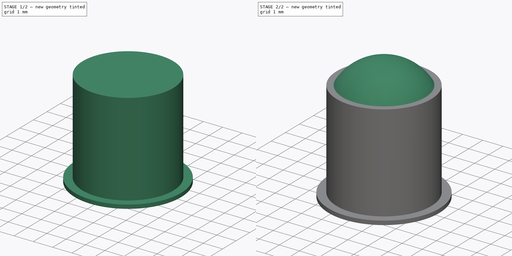
[diagram: build sequence overview — one tinted view per stage of 2, left to right]
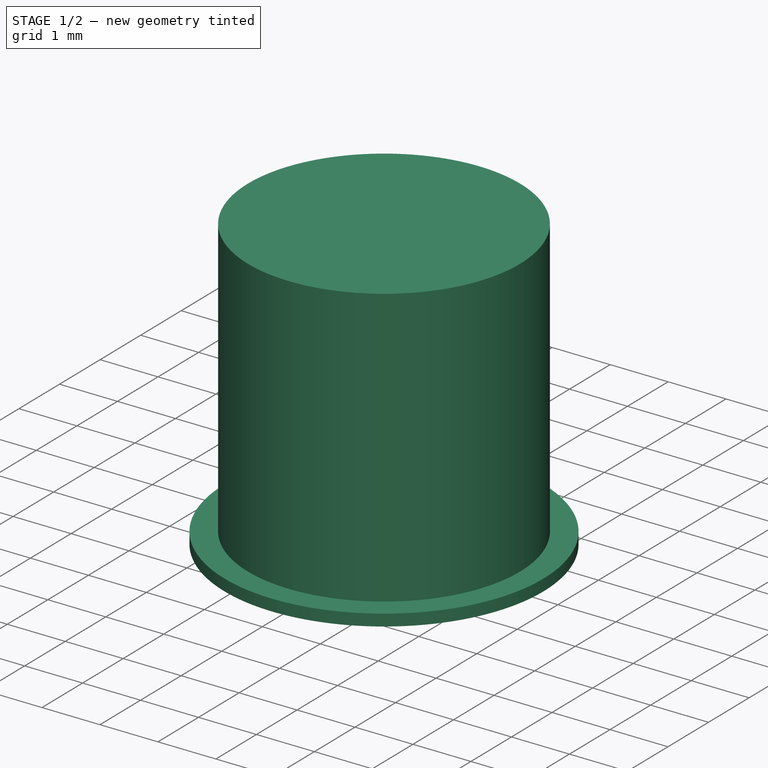
[diagram: stage 1 of 2 — iso view after this stage's code; geometry added in this stage tinted green]
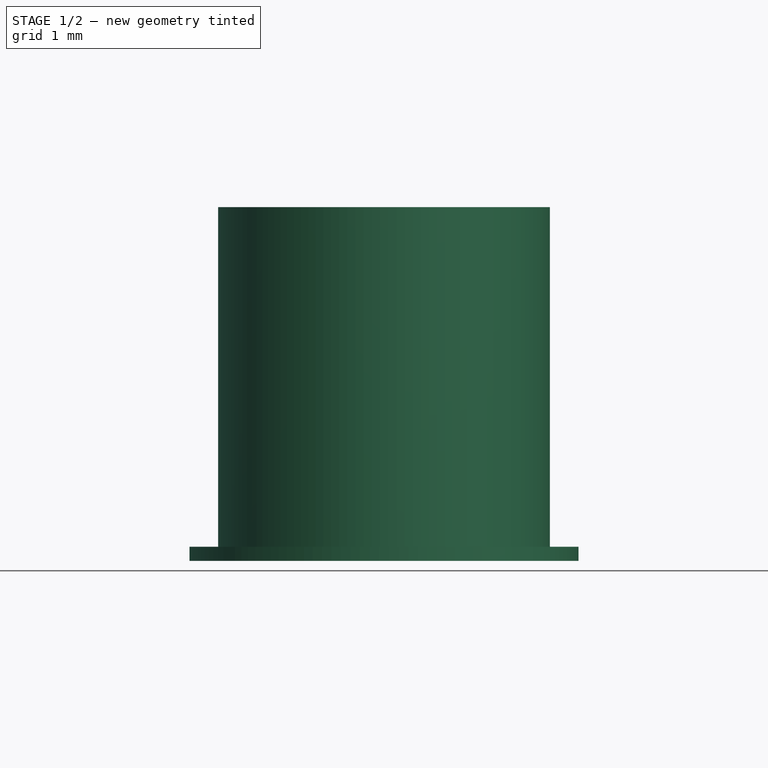
[diagram: stage 1 of 2 — front view after this stage's code; geometry added in this stage tinted green]
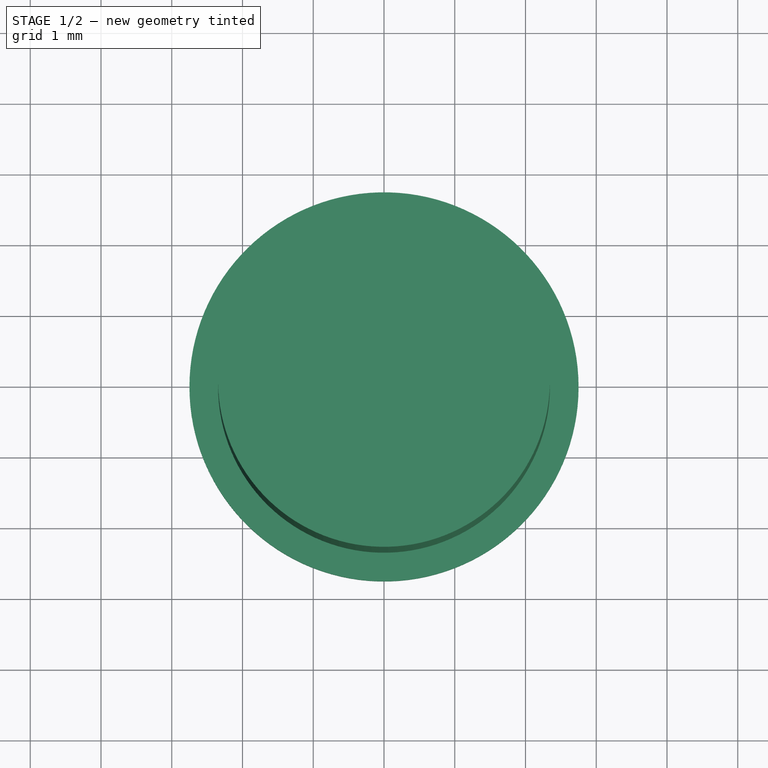
[diagram: stage 1 of 2 — top view after this stage's code; geometry added in this stage tinted green]
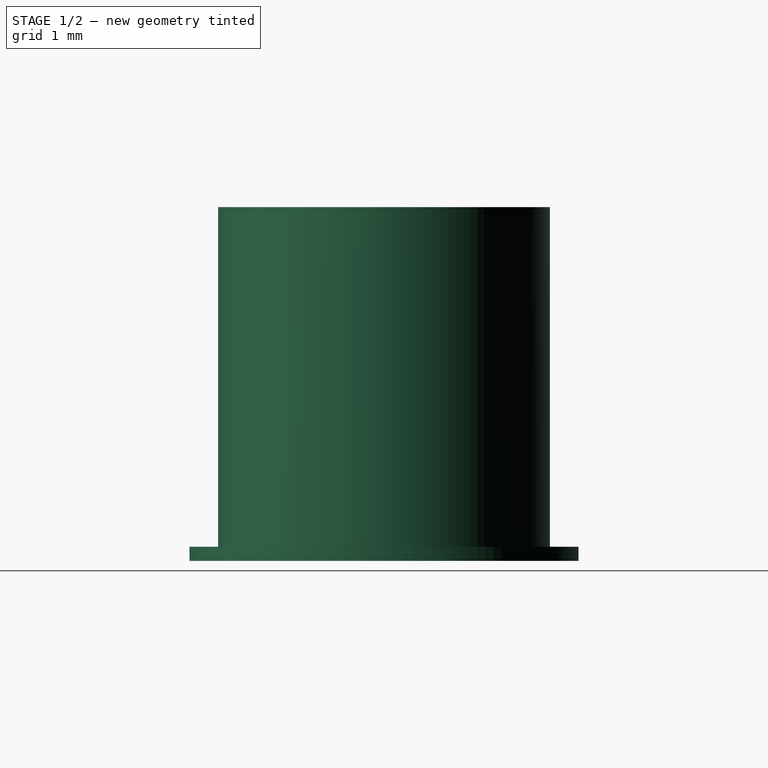
[diagram: stage 1 of 2 — right view after this stage's code; geometry added in this stage tinted green]
FCSTD DOCUMENT  (FreeCAD 0.18.1R)
Label: BPW77N
License: All rights reserved
LicenseURL: http://en.wikipedia.org/wiki/All_rights_reserved
objects: Sketcher::SketchObject×3, PartDesign::Pad×2, PartDesign::Revolution×1, PartDesign::Body×1
note: 10 computed .brp shape members not serialized (recipe doc carries the construction recipe); baked Part::Feature solids carry a one-line shape summary decoded from their .brp

FEATURE [Sketcher::SketchObject] Sketch
  MapMode = 5
  Support = -> [XY_Plane]
  sketch-geometry (1):
    g0: Circle CenterX=0 CenterY=0 CenterZ=0 NormalX=0 NormalY=0 NormalZ=1 AngleXU=0 Radius=2.75
  constraints (2):
    c: Coincident(g0,g-1)
    c: Radius(g0) = 2.75
FEATURE [PartDesign::Pad] Pad
  Length = 0.2
  Length2 = 100
  Profile = -> Sketch
  Type = 0
FEATURE [Sketcher::SketchObject] Sketch002
  MapMode = 5
  Support = -> [XY_Plane]
  sketch-geometry (1):
    g0: Circle CenterX=0 CenterY=0 CenterZ=0 NormalX=0 NormalY=0 NormalZ=1 AngleXU=0 Radius=2.345
  constraints (2):
    c: Coincident(g0,g-1)
    c: Radius(g0) = 2.345
FEATURE [PartDesign::Pad] Pad001
  BaseFeature = -> Pad
  Length = 5
  Length2 = 100
  Profile = -> Sketch002
  Type = 0
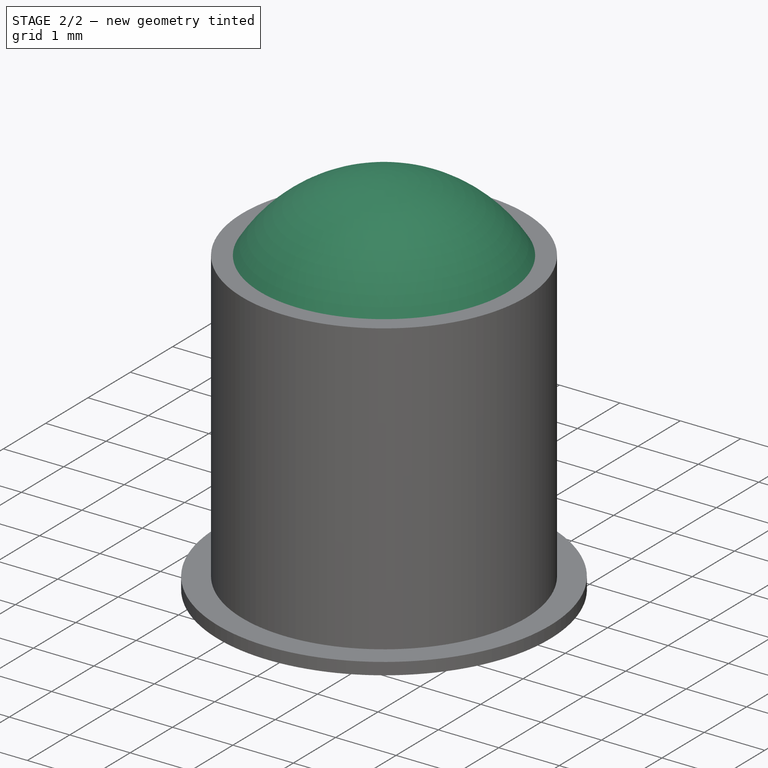
[diagram: stage 2 of 2 — iso view after this stage's code; geometry added in this stage tinted green]
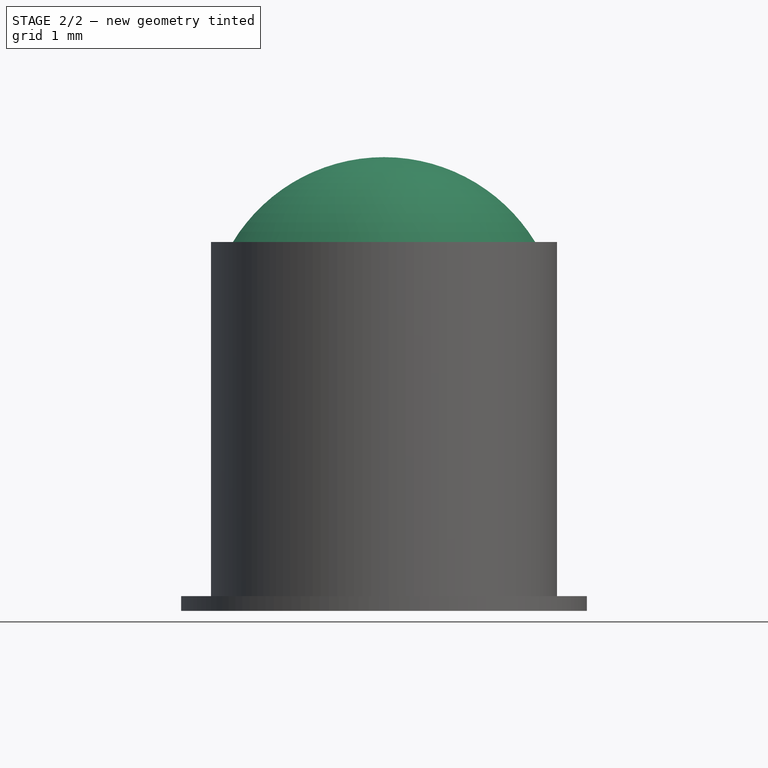
[diagram: stage 2 of 2 — front view after this stage's code; geometry added in this stage tinted green]
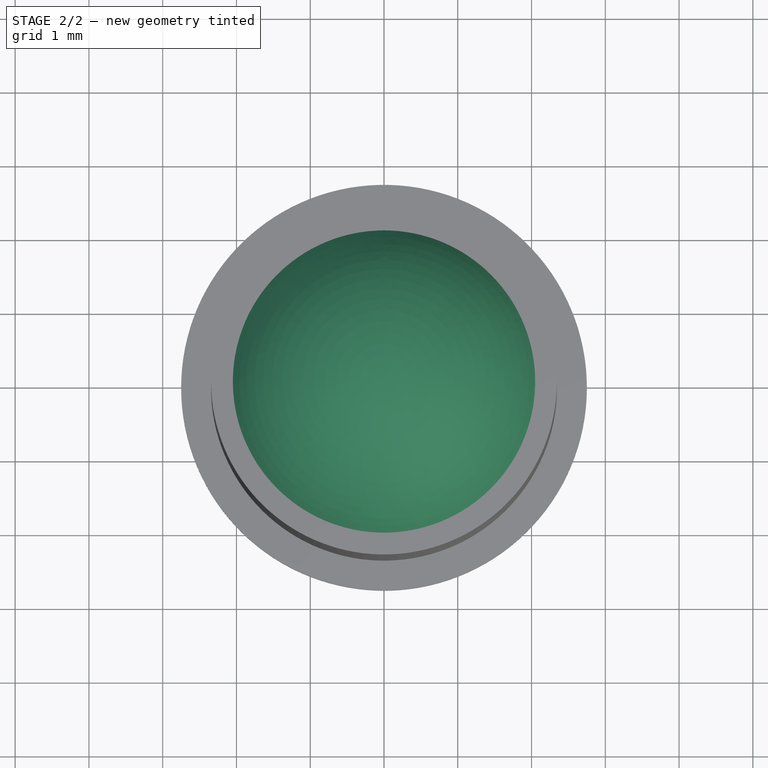
[diagram: stage 2 of 2 — top view after this stage's code; geometry added in this stage tinted green]
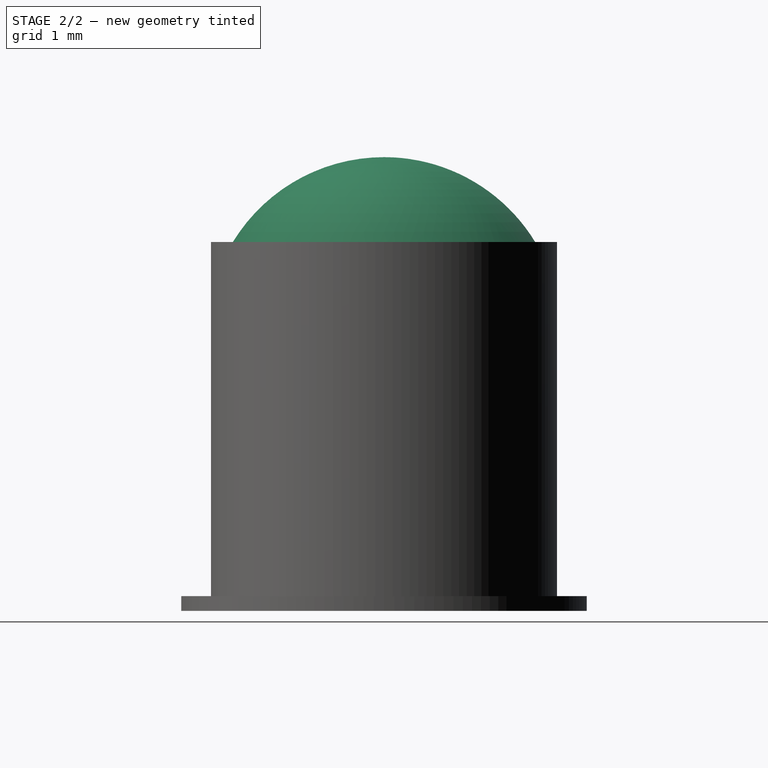
[diagram: stage 2 of 2 — right view after this stage's code; geometry added in this stage tinted green]
FEATURE [Sketcher::SketchObject] Sketch003
  MapMode = 5
  Placement = pos=(0,0,0) rot=(0.57735,0.57735,0.57735;2.0944rad)
  Support = -> [YZ_Plane]
  sketch-geometry (5):
    g0: LineSegment [constr] StartX=0 StartY=6.15 StartZ=0 EndX=2.13307 EndY=6.15 EndZ=0
    g1: LineSegment [constr] StartX=0 StartY=4.85 StartZ=0 EndX=2.13307 EndY=4.85 EndZ=0
    g2: LineSegment StartX=0 StartY=4.85 StartZ=0 EndX=0 EndY=6.15 EndZ=0
    g3: ArcOfCircle CenterX=0 CenterY=3.75 CenterZ=0 NormalX=0 NormalY=0 NormalZ=1 AngleXU=0 Radius=2.4 StartAngle=0.476119 EndAngle=1.5708
    g4: LineSegment StartX=0 StartY=4.85 StartZ=0 EndX=2.13307 EndY=4.85 EndZ=0
  constraints (16):
    c: Horizontal(g0)
    c: Vertical(g0,g1)
    c: Vertical(g0,g1)
    c: DistanceY(g2,g0) = 1.3
    c: Horizontal(g1)
    c: PointOnObject(g2,g1)
    c: Vertical(g2)
    c: Coincident(g3,g1)
    c: Coincident(g3,g2)
    c: Radius(g3) = 2.4
    c: Coincident(g4,g2)
    c: Coincident(g4,g3)
    c: Coincident(g0,g2)
    c: DistanceY(g-1,g2) = 6.15
    c: PointOnObject(g3,g-2)
    c: PointOnObject(g2,g-2)
FEATURE [PartDesign::Revolution] Revolution
  Angle = 360
  Axis = (-2e-16,3e-16,1)
  Base = (0,0,0)
  BaseFeature = -> Pad001
  Profile = -> Sketch003
  ReferenceAxis = -> Sketch003 [V_Axis]
  Reversed = true
FEATURE [PartDesign::Body] Body
  Group = -> [Sketch,Pad,Sketch002,Pad001,Sketch003,Revolution]
  Origin = -> Origin
  Tip = -> Revolution
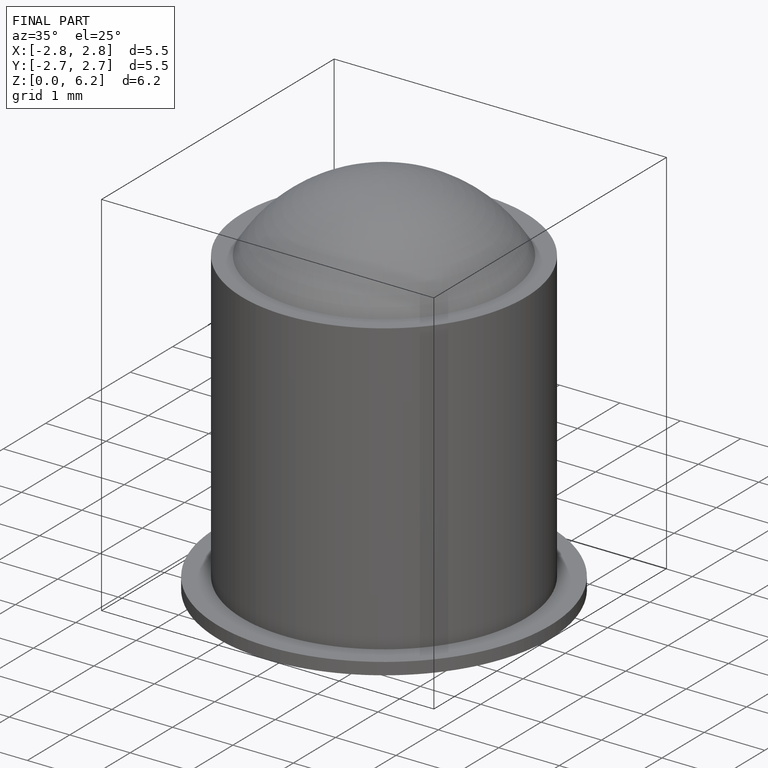
[diagram: finished part — iso view with bounding-box wireframe]
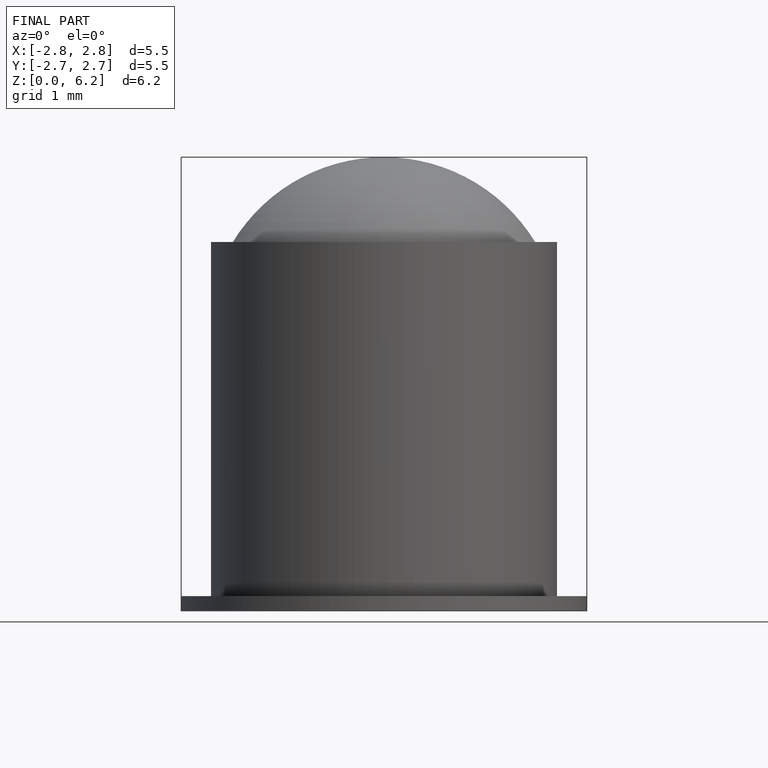
[diagram: finished part — front view with bounding-box wireframe]
